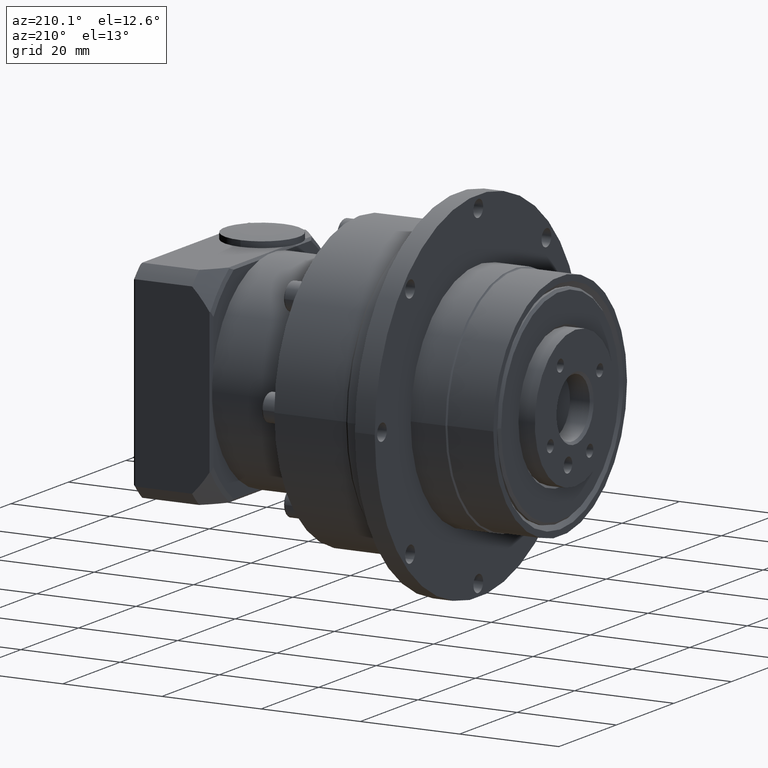
[diagram: clean part render]
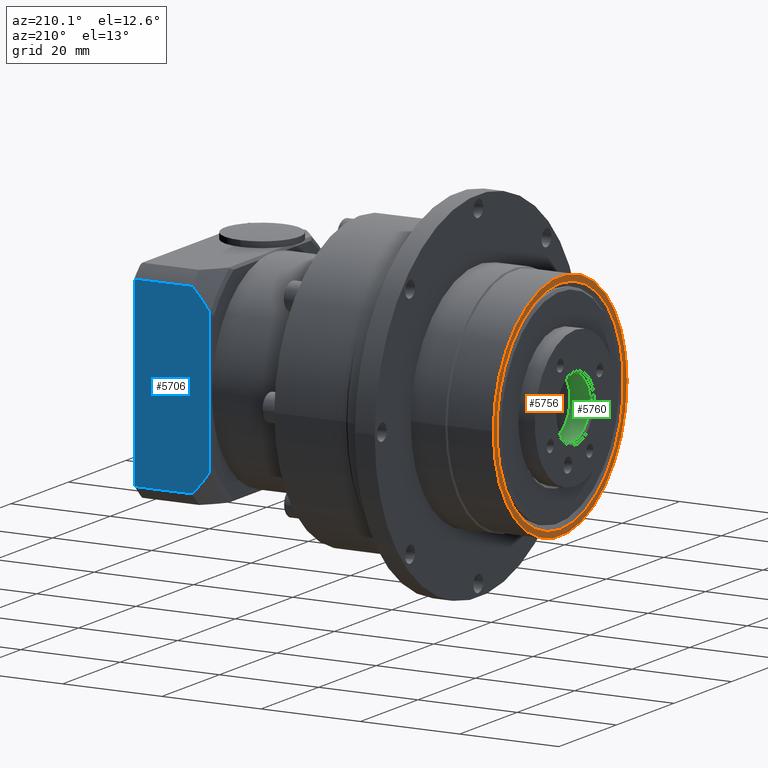
[diagram: same view with three faces highlighted in distinct colors, each labeled with its STEP entity id]
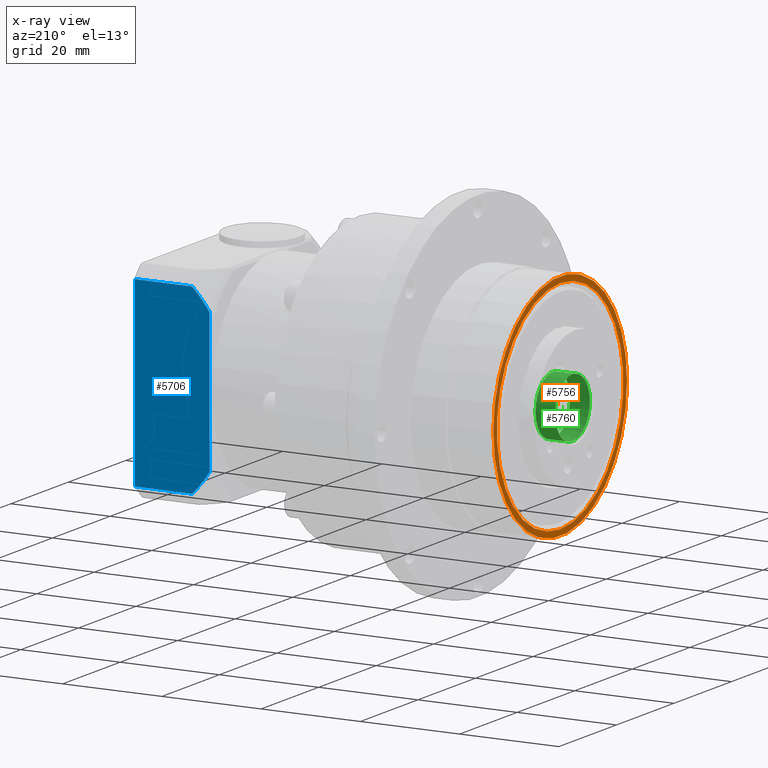
[diagram: x-ray of the same camera — body ghosted, the three highlighted faces saturated]
A machine part, auxiliary view with three faces highlighted in distinct colors.
The next image is the same camera in x-ray (body ghosted, the three faces saturated) — at least one of them is partly hidden behind the body in this view.
Their STEP definitions:

[orange] entity #5756 — the highlighted planar face has unit normal (-1, 0, -0).
#859=PLANE('',#6360);
#1087=FACE_BOUND('',#1932,.T.);
#1400=FACE_OUTER_BOUND('',#1931,.T.);
#1931=EDGE_LOOP('',(#4432));
#1932=EDGE_LOOP('',(#4433));
#2412=CIRCLE('',#6333,23.25);
#2426=CIRCLE('',#6361,22.);
#2818=VERTEX_POINT('',#9334);
#2832=VERTEX_POINT('',#9376);
#3418=EDGE_CURVE('',#2818,#2818,#2412,.T.);
#3432=EDGE_CURVE('',#2832,#2832,#2426,.T.);
#4432=ORIENTED_EDGE('',*,*,#3418,.F.);
#4433=ORIENTED_EDGE('',*,*,#3432,.F.);
#5756=ADVANCED_FACE('',(#1400,#1087),#859,.T.);
#6333=AXIS2_PLACEMENT_3D('',#9335,#7505,#7506);
#6360=AXIS2_PLACEMENT_3D('',#9375,#7559,#7560);
#6361=AXIS2_PLACEMENT_3D('',#9377,#7561,#7562);
#7505=DIRECTION('center_axis',(1.,-3.05311331771913E-16,3.13800764382487E-15));
#7506=DIRECTION('ref_axis',(3.13800764382485E-15,-4.35335528309626E-14,
-1.));
#7559=DIRECTION('center_axis',(-1.,3.05311331771913E-16,-3.13800764382487E-15));
#7560=DIRECTION('ref_axis',(-3.19744231092045E-15,4.36983782492462E-14,
1.));
#7561=DIRECTION('center_axis',(-1.,3.05311331771913E-16,-3.13800764382487E-15));
#7562=DIRECTION('ref_axis',(3.13800764382485E-15,-4.35335528309626E-14,
-1.));
#9334=CARTESIAN_POINT('',(-28.5951631034669,-25.8807567443876,52.886772649368));
#9335=CARTESIAN_POINT('Origin',(-28.5951631034669,-49.1307567443876,52.8867726493691));
#9375=CARTESIAN_POINT('Origin',(-28.5951631034669,-25.8807567443876,52.886772649368));
#9376=CARTESIAN_POINT('',(-28.5951631034669,-49.1307567443866,74.8867726493691));
#9377=CARTESIAN_POINT('Origin',(-28.5951631034669,-49.1307567443876,52.8867726493691));

[blue] entity #5706 — the highlighted planar face has unit normal (0, 1, -0).
#226=LINE('',#9013,#475);
#240=LINE('',#9155,#489);
#243=LINE('',#9217,#492);
#244=LINE('',#9219,#493);
#475=VECTOR('',#7212,37.0405183549043);
#489=VECTOR('',#7318,28.6829409231341);
#492=VECTOR('',#7357,11.5014761628236);
#493=VECTOR('',#7360,11.5014761628236);
#843=PLANE('',#6261);
#1350=FACE_OUTER_BOUND('',#1827,.T.);
#1827=EDGE_LOOP('',(#4315,#4316,#4317,#4318,#4319,#4320));
#2374=CIRCLE('',#6255,25.740404037233);
#2375=CIRCLE('',#6257,25.740404037233);
#2745=VERTEX_POINT('',#8999);
#2747=VERTEX_POINT('',#9008);
#2780=VERTEX_POINT('',#9153);
#2781=VERTEX_POINT('',#9154);
#2786=VERTEX_POINT('',#9209);
#2787=VERTEX_POINT('',#9213);
#3311=EDGE_CURVE('',#2747,#2745,#226,.T.);
#3366=EDGE_CURVE('',#2780,#2781,#240,.T.);
#3377=EDGE_CURVE('',#2780,#2786,#2374,.T.);
#3378=EDGE_CURVE('',#2787,#2781,#2375,.T.);
#3380=EDGE_CURVE('',#2747,#2787,#243,.T.);
#3381=EDGE_CURVE('',#2786,#2745,#244,.T.);
#4315=ORIENTED_EDGE('',*,*,#3311,.F.);
#4316=ORIENTED_EDGE('',*,*,#3380,.T.);
#4317=ORIENTED_EDGE('',*,*,#3378,.T.);
#4318=ORIENTED_EDGE('',*,*,#3366,.F.);
#4319=ORIENTED_EDGE('',*,*,#3377,.T.);
#4320=ORIENTED_EDGE('',*,*,#3381,.T.);
#5706=ADVANCED_FACE('',(#1350),#843,.T.);
#6255=AXIS2_PLACEMENT_3D('',#9211,#7347,#7348);
#6257=AXIS2_PLACEMENT_3D('',#9214,#7351,#7352);
#6261=AXIS2_PLACEMENT_3D('',#9220,#7361,#7362);
#7212=DIRECTION('',(-2.01650819535831E-15,4.30157537591353E-14,1.));
#7318=DIRECTION('',(2.01650819535831E-15,-4.30157537591353E-14,-1.));
#7347=DIRECTION('center_axis',(1.36047229862591E-15,1.,-4.30157537591353E-14));
#7348=DIRECTION('ref_axis',(2.01650819535831E-15,-4.30157537591353E-14,
-1.));
#7351=DIRECTION('center_axis',(1.36047229862591E-15,1.,-4.30157537591353E-14));
#7352=DIRECTION('ref_axis',(2.01650819535831E-15,-4.30157537591353E-14,
-1.));
#7357=DIRECTION('',(-1.,1.36047229862582E-15,-2.01650819535837E-15));
#7360=DIRECTION('',(1.,-1.36047229862582E-15,2.01650819535837E-15));
#7361=DIRECTION('center_axis',(1.36047229862591E-15,1.,-4.30157537591353E-14));
#7362=DIRECTION('ref_axis',(2.1316282072803E-15,-4.29878355134861E-14,-1.));
#8999=CARTESIAN_POINT('',(44.9048368965331,-28.1307567443867,71.4070318268205));
#9008=CARTESIAN_POINT('',(44.9048368965332,-28.1307567443883,34.3665134719163));
#9013=CARTESIAN_POINT('',(44.9048368965331,-28.1307567443871,63.3867726493684));
#9153=CARTESIAN_POINT('',(29.9048368965331,-28.1307567443869,67.2282431109354));
#9154=CARTESIAN_POINT('',(29.9048368965332,-28.1307567443881,38.5453021878013));
#9155=CARTESIAN_POINT('',(29.9048368965331,-28.130756744387,63.3867726493684));
#9209=CARTESIAN_POINT('',(33.4033607337095,-28.1307567443867,71.4070318268205));
#9211=CARTESIAN_POINT('Origin',(51.2798368965332,-28.1307567443875,52.8867726493684));
#9213=CARTESIAN_POINT('',(33.4033607337096,-28.1307567443883,34.3665134719162));
#9214=CARTESIAN_POINT('Origin',(51.2798368965332,-28.1307567443875,52.8867726493684));
#9217=CARTESIAN_POINT('',(45.4048368965332,-28.1307567443883,34.3665134719163));
#9219=CARTESIAN_POINT('',(45.4048368965331,-28.1307567443867,71.4070318268205));
#9220=CARTESIAN_POINT('Origin',(45.4048368965331,-28.1307567443866,73.8867726493684));

[green] entity #5760 — the highlighted cylindrical surface (bore or boss wall) has radius 6 mm, axis along (1, -0, 0).
#1096=FACE_BOUND('',#1945,.T.);
#1404=FACE_OUTER_BOUND('',#1944,.T.);
#1944=EDGE_LOOP('',(#4445));
#1945=EDGE_LOOP('',(#4446));
#2436=CIRCLE('',#6375,6.);
#2437=CIRCLE('',#6376,6.);
#2842=VERTEX_POINT('',#9400);
#2843=VERTEX_POINT('',#9402);
#3442=EDGE_CURVE('',#2842,#2842,#2436,.T.);
#3443=EDGE_CURVE('',#2843,#2843,#2437,.T.);
#4445=ORIENTED_EDGE('',*,*,#3442,.T.);
#4446=ORIENTED_EDGE('',*,*,#3443,.F.);
#5233=CYLINDRICAL_SURFACE('',#6374,6.);
#5760=ADVANCED_FACE('',(#1404,#1096),#5233,.F.);
#6374=AXIS2_PLACEMENT_3D('',#9399,#7587,#7588);
#6375=AXIS2_PLACEMENT_3D('',#9401,#7589,#7590);
#6376=AXIS2_PLACEMENT_3D('',#9403,#7591,#7592);
#7587=DIRECTION('center_axis',(1.,-1.48983721341743E-16,3.23635577620662E-15));
#7588=DIRECTION('ref_axis',(6.50731721526339E-16,-0.969347786707734,-0.245692629935898));
#7589=DIRECTION('center_axis',(1.,-1.48983721341743E-16,3.23635577620662E-15));
#7590=DIRECTION('ref_axis',(6.50731721526339E-16,-0.969347786707734,-0.245692629935898));
#7591=DIRECTION('center_axis',(1.,-1.48983721341743E-16,3.23635577620662E-15));
#7592=DIRECTION('ref_axis',(6.50731721526339E-16,-0.969347786707734,-0.245692629935898));
#9399=CARTESIAN_POINT('Origin',(-31.5951631034669,-49.1307567443876,52.8867726493691));
#9400=CARTESIAN_POINT('',(-27.0951631034669,-43.3146700241412,54.3609284289845));
#9401=CARTESIAN_POINT('Origin',(-27.0951631034669,-49.1307567443876,52.8867726493691));
#9402=CARTESIAN_POINT('',(-31.0951631034669,-43.3146700241412,54.3609284289845));
#9403=CARTESIAN_POINT('Origin',(-31.0951631034669,-49.1307567443876,52.8867726493691));